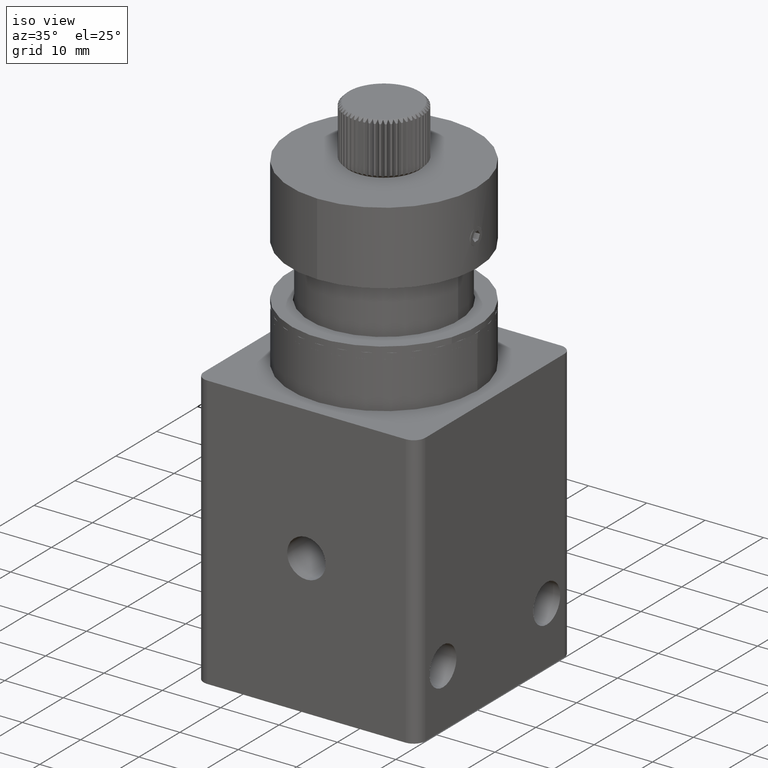
[diagram: clean part render]
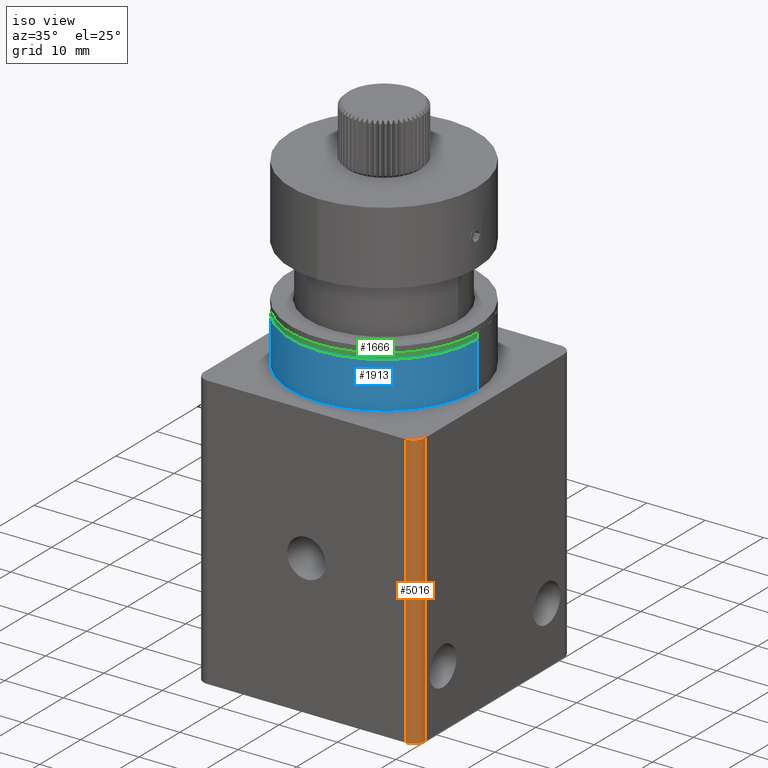
[diagram: same view with three faces highlighted in distinct colors, each labeled with its STEP entity id]
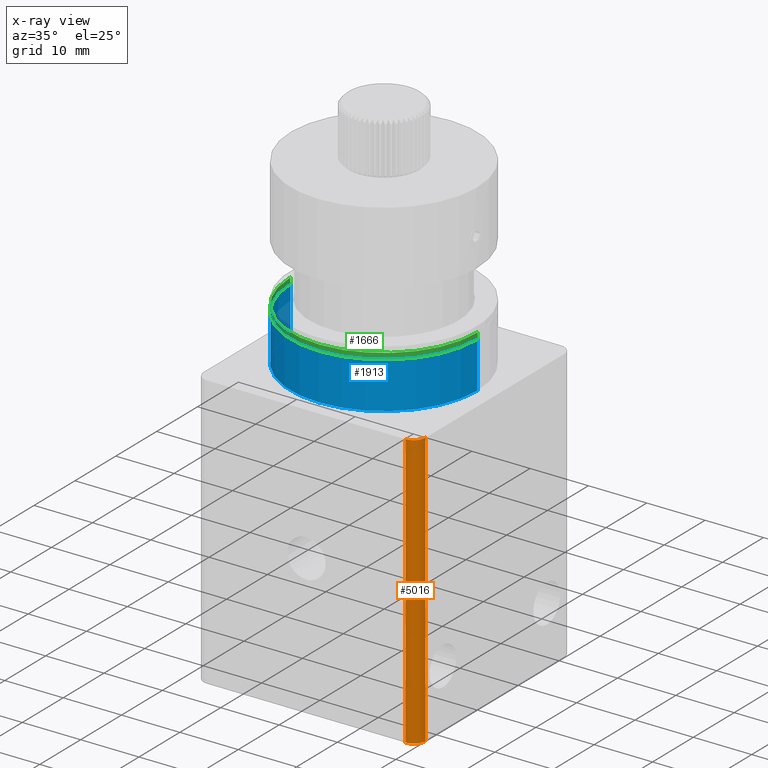
[diagram: x-ray of the same camera — body ghosted, the three highlighted faces saturated]
A machine part, iso view with three faces highlighted in distinct colors.
The next image is the same camera in x-ray (body ghosted, the three faces saturated) — at least one of them is partly hidden behind the body in this view.
Their STEP definitions:

[orange] entity #5016 — the highlighted cylindrical surface (edge-blend (fillet) strip) has radius 2 mm, axis along (0, 0, -1).
#123 = CARTESIAN_POINT ( 'NONE',  ( 69.82532685223229400, 24.65691868999381200, 46.15325513704508600 ) ) ;
#273 = VERTEX_POINT ( 'NONE', #4659 ) ;
#370 = CARTESIAN_POINT ( 'NONE',  ( 71.82532685223228000, 24.65691868999381200, -0.8467448629549123600 ) ) ;
#1127 = AXIS2_PLACEMENT_3D ( 'NONE', #5851, #2600, #5201 ) ;
#1172 = CYLINDRICAL_SURFACE ( 'NONE', #4260, 2.000000000000001800 ) ;
#1254 = DIRECTION ( 'NONE',  ( -1.000000000000000000, 0.0000000000000000000, 0.0000000000000000000 ) ) ;
#1313 = DIRECTION ( 'NONE',  ( 0.0000000000000000000, 0.0000000000000000000, -1.000000000000000000 ) ) ;
#1433 = EDGE_CURVE ( 'NONE', #4413, #3776, #4946, .T. ) ;
#1718 = CARTESIAN_POINT ( 'NONE',  ( 69.82532685223229400, 22.65691868999381200, 46.15325513704508600 ) ) ;
#2036 = ORIENTED_EDGE ( 'NONE', *, *, #2663, .F. ) ;
#2161 = CARTESIAN_POINT ( 'NONE',  ( 71.82532685223228000, 24.65691868999381200, 46.15325513704508600 ) ) ;
#2600 = DIRECTION ( 'NONE',  ( 0.0000000000000000000, -0.0000000000000000000, -1.000000000000000000 ) ) ;
#2663 = EDGE_CURVE ( 'NONE', #5211, #273, #8086, .T. ) ;
#2805 = DIRECTION ( 'NONE',  ( 0.0000000000000000000, 0.0000000000000000000, -1.000000000000000000 ) ) ;
#3776 = VERTEX_POINT ( 'NONE', #370 ) ;
#4260 = AXIS2_PLACEMENT_3D ( 'NONE', #5813, #1313, #1254 ) ;
#4413 = VERTEX_POINT ( 'NONE', #7055 ) ;
#4592 = ORIENTED_EDGE ( 'NONE', *, *, #7687, .F. ) ;
#4603 = ORIENTED_EDGE ( 'NONE', *, *, #1433, .F. ) ;
#4640 = DIRECTION ( 'NONE',  ( -0.0000000000000000000, 0.0000000000000000000, 1.000000000000000000 ) ) ;
#4659 = CARTESIAN_POINT ( 'NONE',  ( 69.82532685223229400, 22.65691868999381200, 46.15325513704508600 ) ) ;
#4702 = EDGE_LOOP ( 'NONE', ( #4592, #2036, #5696, #4603 ) ) ;
#4923 = CIRCLE ( 'NONE', #1127, 2.000000000000001800 ) ;
#4946 = LINE ( 'NONE', #2161, #5446 ) ;
#5016 = ADVANCED_FACE ( 'NONE', ( #5170 ), #1172, .T. ) ;
#5170 = FACE_OUTER_BOUND ( 'NONE', #4702, .T. ) ;
#5201 = DIRECTION ( 'NONE',  ( 1.000000000000000000, 0.0000000000000000000, 0.0000000000000000000 ) ) ;
#5211 = VERTEX_POINT ( 'NONE', #7968 ) ;
#5446 = VECTOR ( 'NONE', #2805, 1000.000000000000000 ) ;
#5696 = ORIENTED_EDGE ( 'NONE', *, *, #7592, .F. ) ;
#5813 = CARTESIAN_POINT ( 'NONE',  ( 69.82532685223229400, 24.65691868999381200, 46.15325513704508600 ) ) ;
#5851 = CARTESIAN_POINT ( 'NONE',  ( 69.82532685223229400, 24.65691868999381200, -0.8467448629549123600 ) ) ;
#6546 = DIRECTION ( 'NONE',  ( 1.000000000000000000, 0.0000000000000000000, 0.0000000000000000000 ) ) ;
#6850 = DIRECTION ( 'NONE',  ( -0.0000000000000000000, -0.0000000000000000000, 1.000000000000000000 ) ) ;
#7043 = CIRCLE ( 'NONE', #7148, 2.000000000000001800 ) ;
#7055 = CARTESIAN_POINT ( 'NONE',  ( 71.82532685223228000, 24.65691868999381200, 46.15325513704508600 ) ) ;
#7148 = AXIS2_PLACEMENT_3D ( 'NONE', #123, #4640, #6546 ) ;
#7177 = VECTOR ( 'NONE', #6850, 1000.000000000000000 ) ;
#7592 = EDGE_CURVE ( 'NONE', #3776, #5211, #4923, .T. ) ;
#7687 = EDGE_CURVE ( 'NONE', #273, #4413, #7043, .T. ) ;
#7968 = CARTESIAN_POINT ( 'NONE',  ( 69.82532685223229400, 22.65691868999381200, -0.8467448629549123600 ) ) ;
#8086 = LINE ( 'NONE', #1718, #7177 ) ;

[blue] entity #1913 — the highlighted cylindrical surface (partial cylindrical patch) has radius 16 mm, axis along (-0, -0, -1).
#144 = DIRECTION ( 'NONE',  ( -0.0000000000000000000, -0.0000000000000000000, -1.000000000000000000 ) ) ;
#888 = VERTEX_POINT ( 'NONE', #6115 ) ;
#1038 = VERTEX_POINT ( 'NONE', #3068 ) ;
#1497 = DIRECTION ( 'NONE',  ( 1.000000000000000000, 0.0000000000000000000, 0.0000000000000000000 ) ) ;
#1660 = DIRECTION ( 'NONE',  ( 1.000000000000000000, 0.0000000000000000000, 0.0000000000000000000 ) ) ;
#1913 = ADVANCED_FACE ( 'NONE', ( #7998 ), #5256, .T. ) ;
#2148 = AXIS2_PLACEMENT_3D ( 'NONE', #6676, #6072, #1660 ) ;
#2391 = DIRECTION ( 'NONE',  ( -0.0000000000000000000, -0.0000000000000000000, -1.000000000000000000 ) ) ;
#2691 = ORIENTED_EDGE ( 'NONE', *, *, #4486, .T. ) ;
#3068 = CARTESIAN_POINT ( 'NONE',  ( 68.82532685223228000, 41.65691868999381600, 54.15325513704508600 ) ) ;
#3226 = CIRCLE ( 'NONE', #7079, 16.00000000000000700 ) ;
#3609 = AXIS2_PLACEMENT_3D ( 'NONE', #6540, #144, #6487 ) ;
#3672 = CARTESIAN_POINT ( 'NONE',  ( 68.82532685223228000, 41.65691868999381600, 54.15325513704508600 ) ) ;
#3700 = VERTEX_POINT ( 'NONE', #7429 ) ;
#3725 = EDGE_CURVE ( 'NONE', #3813, #1038, #8115, .T. ) ;
#3797 = EDGE_LOOP ( 'NONE', ( #5821, #4481, #2691, #4533 ) ) ;
#3813 = VERTEX_POINT ( 'NONE', #4877 ) ;
#4280 = EDGE_CURVE ( 'NONE', #1038, #888, #8017, .T. ) ;
#4481 = ORIENTED_EDGE ( 'NONE', *, *, #3725, .F. ) ;
#4486 = EDGE_CURVE ( 'NONE', #3813, #3700, #6064, .T. ) ;
#4533 = ORIENTED_EDGE ( 'NONE', *, *, #6661, .T. ) ;
#4545 = DIRECTION ( 'NONE',  ( -0.0000000000000000000, -0.0000000000000000000, -1.000000000000000000 ) ) ;
#4723 = CARTESIAN_POINT ( 'NONE',  ( 52.82532685223227300, 41.65691868999381600, 46.15325513704508600 ) ) ;
#4877 = CARTESIAN_POINT ( 'NONE',  ( 36.82532685223227300, 41.65691868999381600, 54.15325513704508600 ) ) ;
#5256 = CYLINDRICAL_SURFACE ( 'NONE', #3609, 16.00000000000000000 ) ;
#5440 = DIRECTION ( 'NONE',  ( 0.0000000000000000000, 0.0000000000000000000, 1.000000000000000000 ) ) ;
#5821 = ORIENTED_EDGE ( 'NONE', *, *, #4280, .F. ) ;
#6064 = LINE ( 'NONE', #6502, #7620 ) ;
#6072 = DIRECTION ( 'NONE',  ( 0.0000000000000000000, 0.0000000000000000000, 1.000000000000000000 ) ) ;
#6115 = CARTESIAN_POINT ( 'NONE',  ( 68.82532685223228000, 41.65691868999381600, 46.15325513704508600 ) ) ;
#6487 = DIRECTION ( 'NONE',  ( -1.000000000000000000, 0.0000000000000000000, 0.0000000000000000000 ) ) ;
#6502 = CARTESIAN_POINT ( 'NONE',  ( 36.82532685223227300, 41.65691868999381600, 54.15325513704508600 ) ) ;
#6540 = CARTESIAN_POINT ( 'NONE',  ( 52.82532685223227300, 41.65691868999381600, 54.15325513704508600 ) ) ;
#6661 = EDGE_CURVE ( 'NONE', #3700, #888, #3226, .T. ) ;
#6676 = CARTESIAN_POINT ( 'NONE',  ( 52.82532685223227300, 41.65691868999381600, 54.15325513704508600 ) ) ;
#7079 = AXIS2_PLACEMENT_3D ( 'NONE', #4723, #5440, #1497 ) ;
#7406 = VECTOR ( 'NONE', #2391, 1000.000000000000000 ) ;
#7429 = CARTESIAN_POINT ( 'NONE',  ( 36.82532685223227300, 41.65691868999381600, 46.15325513704508600 ) ) ;
#7620 = VECTOR ( 'NONE', #4545, 1000.000000000000000 ) ;
#7998 = FACE_OUTER_BOUND ( 'NONE', #3797, .T. ) ;
#8017 = LINE ( 'NONE', #3672, #7406 ) ;
#8115 = CIRCLE ( 'NONE', #2148, 16.00000000000000700 ) ;

[green] entity #1666 — the highlighted cylindrical surface (partial cylindrical patch) has radius 16 mm, axis along (0, 0, -1).
#466 = ORIENTED_EDGE ( 'NONE', *, *, #1814, .T. ) ;
#658 = CARTESIAN_POINT ( 'NONE',  ( 68.82501554091130900, 41.75672783464554500, 54.15325513704508600 ) ) ;
#711 = EDGE_LOOP ( 'NONE', ( #6826, #1392, #466, #3634 ) ) ;
#744 = VERTEX_POINT ( 'NONE', #5933 ) ;
#1167 = DIRECTION ( 'NONE',  ( 0.0000000000000000000, 0.0000000000000000000, 1.000000000000000000 ) ) ;
#1176 = CIRCLE ( 'NONE', #6108, 16.00000000000002500 ) ;
#1379 = CARTESIAN_POINT ( 'NONE',  ( 36.82563816355323600, 41.55710954534208000, 55.15325513704508600 ) ) ;
#1392 = ORIENTED_EDGE ( 'NONE', *, *, #4335, .F. ) ;
#1666 = ADVANCED_FACE ( 'NONE', ( #6875 ), #4556, .T. ) ;
#1814 = EDGE_CURVE ( 'NONE', #8332, #744, #3249, .T. ) ;
#1928 = DIRECTION ( 'NONE',  ( 0.0000000000000000000, 0.0000000000000000000, -1.000000000000000000 ) ) ;
#2779 = AXIS2_PLACEMENT_3D ( 'NONE', #5590, #4972, #6231 ) ;
#3249 = LINE ( 'NONE', #7702, #7507 ) ;
#3295 = EDGE_CURVE ( 'NONE', #744, #8252, #6439, .T. ) ;
#3634 = ORIENTED_EDGE ( 'NONE', *, *, #3295, .T. ) ;
#4335 = EDGE_CURVE ( 'NONE', #8332, #8035, #1176, .T. ) ;
#4556 = CYLINDRICAL_SURFACE ( 'NONE', #7234, 16.00000000000002500 ) ;
#4684 = CARTESIAN_POINT ( 'NONE',  ( 68.82501554091130900, 41.75672783464554500, 55.15325513704508600 ) ) ;
#4972 = DIRECTION ( 'NONE',  ( 0.0000000000000000000, 0.0000000000000000000, 1.000000000000000000 ) ) ;
#4995 = CARTESIAN_POINT ( 'NONE',  ( 52.82532685223227300, 41.65691868999381600, 55.15325513704508600 ) ) ;
#5590 = CARTESIAN_POINT ( 'NONE',  ( 52.82532685223227300, 41.65691868999381600, 54.15325513704508600 ) ) ;
#5600 = CARTESIAN_POINT ( 'NONE',  ( 68.82501554091133800, 41.75672783464554500, 55.15325513704508600 ) ) ;
#5638 = DIRECTION ( 'NONE',  ( 0.9999805430424398800, 0.006238071540733387300, 0.0000000000000000000 ) ) ;
#5659 = CARTESIAN_POINT ( 'NONE',  ( 52.82532685223227300, 41.65691868999381600, 55.15325513704508600 ) ) ;
#5933 = CARTESIAN_POINT ( 'NONE',  ( 36.82563816355323600, 41.55710954534208000, 54.15325513704508600 ) ) ;
#6108 = AXIS2_PLACEMENT_3D ( 'NONE', #4995, #1167, #5638 ) ;
#6133 = EDGE_CURVE ( 'NONE', #8035, #8252, #6982, .T. ) ;
#6231 = DIRECTION ( 'NONE',  ( 0.9999805430424398800, 0.006238071540733387300, 0.0000000000000000000 ) ) ;
#6271 = DIRECTION ( 'NONE',  ( -0.9999805430424398800, -0.006238071540733387300, 0.0000000000000000000 ) ) ;
#6439 = CIRCLE ( 'NONE', #2779, 16.00000000000002500 ) ;
#6826 = ORIENTED_EDGE ( 'NONE', *, *, #6133, .F. ) ;
#6875 = FACE_OUTER_BOUND ( 'NONE', #711, .T. ) ;
#6897 = DIRECTION ( 'NONE',  ( 0.0000000000000000000, 0.0000000000000000000, -1.000000000000000000 ) ) ;
#6982 = LINE ( 'NONE', #5600, #7795 ) ;
#6988 = DIRECTION ( 'NONE',  ( 0.0000000000000000000, 0.0000000000000000000, -1.000000000000000000 ) ) ;
#7234 = AXIS2_PLACEMENT_3D ( 'NONE', #5659, #6988, #6271 ) ;
#7507 = VECTOR ( 'NONE', #1928, 1000.000000000000000 ) ;
#7702 = CARTESIAN_POINT ( 'NONE',  ( 36.82563816355320800, 41.55710954534208000, 55.15325513704508600 ) ) ;
#7795 = VECTOR ( 'NONE', #6897, 1000.000000000000000 ) ;
#8035 = VERTEX_POINT ( 'NONE', #4684 ) ;
#8252 = VERTEX_POINT ( 'NONE', #658 ) ;
#8332 = VERTEX_POINT ( 'NONE', #1379 ) ;